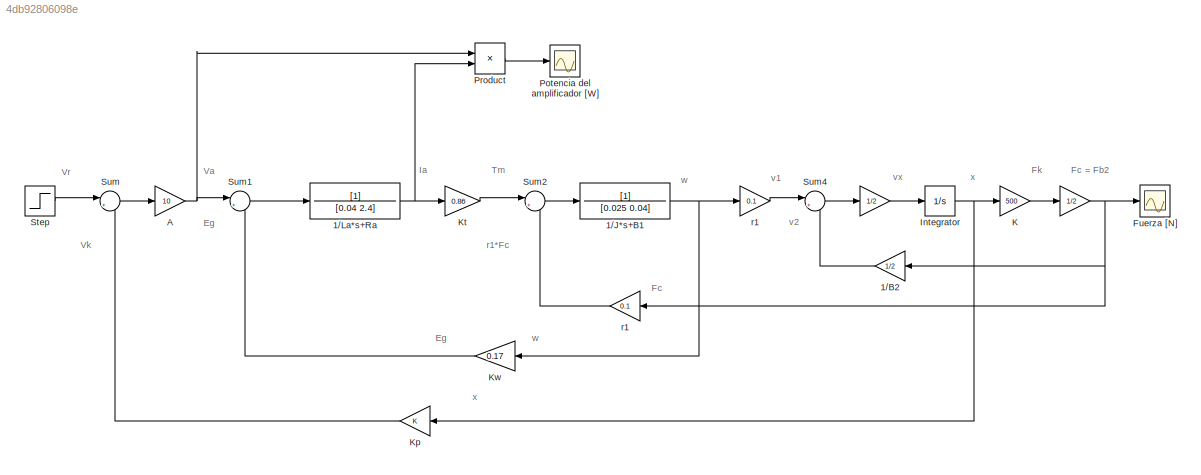
MODEL slx_4db92806098e
KIND model
CONFIG AbsTol = auto
CONFIG EnableMultiTasking = off
CONFIG FixedStep = auto
CONFIG MaxStep = auto
CONFIG MinStep = auto
CONFIG RelTol = 1e-3
CONFIG SampleTimeConstraint = Unconstrained
CONFIG SolverName = VariableStepAuto
CONFIG StartTime = 0.0
CONFIG StopTime = 10.0
BLOCK [Gain]  
  Gain = 1/2
BLOCK [Gain]    
  Gain = 1/2
BLOCK [Gain] 1//B2
  Gain = 1/2
BLOCK [TransferFcn] 1//J*s+B1
  Denominator = [0.025 0.04]
BLOCK [TransferFcn] 1//La*s+Ra
  Denominator = [0.04 2.4]
BLOCK [Gain] A
  Gain = 10
BLOCK [Scope] Fuerza [N]
  Floating = off
  NumInputPorts = 1
  Ports = [1]
  ScopeSpecificationString = Simulink.scopes.TimeScopeBlockCfg('CurrentConfiguration', extmgr.ConfigurationSet(extmgr.Configuration('Core','General UI',true),extmgr.Configuration('Core','Source UI',true),extmgr.Configuration('Sources','WiredSimulink',true),extmgr.Configuration('Visuals','Time Domain',true,'SerializedDisplays',{struct('MinYLimReal','-0.12484','MaxYLimReal','1.12353','YLabelReal','','MinYLimMag','0.00000','MaxY...<+1356ch>
BLOCK [Integrator] Integrator
  Ports = [1, 1]
BLOCK [Gain] K
  Gain = 500
BLOCK [Gain] Kp
BLOCK [Gain] Kt
  Gain = 0.86
BLOCK [Gain] Kw
  Gain = 0.17
BLOCK [Scope] Potencia del amplificador [W]
  Floating = off
  NameLocation = right
  NumInputPorts = 1
  Ports = [1]
  ScopeSpecificationString = Simulink.scopes.TimeScopeBlockCfg('CurrentConfiguration', extmgr.ConfigurationSet(extmgr.Configuration('Core','General UI',true),extmgr.Configuration('Core','Source UI',true),extmgr.Configuration('Sources','WiredSimulink',true,'DataLoggingVariableName','ScopeData1'),extmgr.Configuration('Visuals','Time Domain',true,'SerializedDisplays',{struct('MinYLimReal','-0.13917','MaxYLimReal','1.25257','YLab...<+1399ch>
BLOCK [Product] Product
  Ports = [2, 1]
BLOCK [Step] Step
  After = 0.1725
  SampleTime = 0
BLOCK [Sum] Sum
  Inputs = |+-
  Ports = [2, 1]
BLOCK [Sum] Sum1
  Inputs = |+-
  Ports = [2, 1]
BLOCK [Sum] Sum2
  Inputs = |+-
  Ports = [2, 1]
BLOCK [Sum] Sum4
  Inputs = |+-
  Ports = [2, 1]
BLOCK [Gain] r1
  Gain = 0.1
BLOCK [Gain] r1 
  Gain = 0.1
ANNOTATION (root): Eg
ANNOTATION (root): Fc
ANNOTATION (root): Fc = Fb2
ANNOTATION (root): Fk
ANNOTATION (root): Ia
ANNOTATION (root): Tm
ANNOTATION (root): Va
ANNOTATION (root): Vk
ANNOTATION (root): Vr
ANNOTATION (root): r1*Fc
ANNOTATION (root): v1
ANNOTATION (root): v2
ANNOTATION (root): vx
ANNOTATION (root): w
ANNOTATION (root): x
NET    :1 -> 1//B2:1, Fuerza [N]:1, r1:1
LINE  :1 -> Integrator:1
LINE 1//B2:1 -> Sum4:2
NET 1//J*s+B1:1 -> Kw:1, r1 :1
NET 1//La*s+Ra:1 -> Kt:1, Product:2
NET A:1 -> Product:1, Sum1:1
NET Integrator:1 -> K:1, Kp:1
LINE K:1 ->    :1
LINE Kp:1 -> Sum:2
LINE Kt:1 -> Sum2:1
LINE Kw:1 -> Sum1:2
LINE Product:1 -> Potencia del amplificador [W]:1
LINE Step:1 -> Sum:1
LINE Sum1:1 -> 1//La*s+Ra:1
LINE Sum2:1 -> 1//J*s+B1:1
LINE Sum4:1 ->  :1
LINE Sum:1 -> A:1
LINE r1 :1 -> Sum4:1
LINE r1:1 -> Sum2:2
note: NET lines group one-source signal fan-out (src -> all destinations, sorted); 1:1 wires keep LINE
